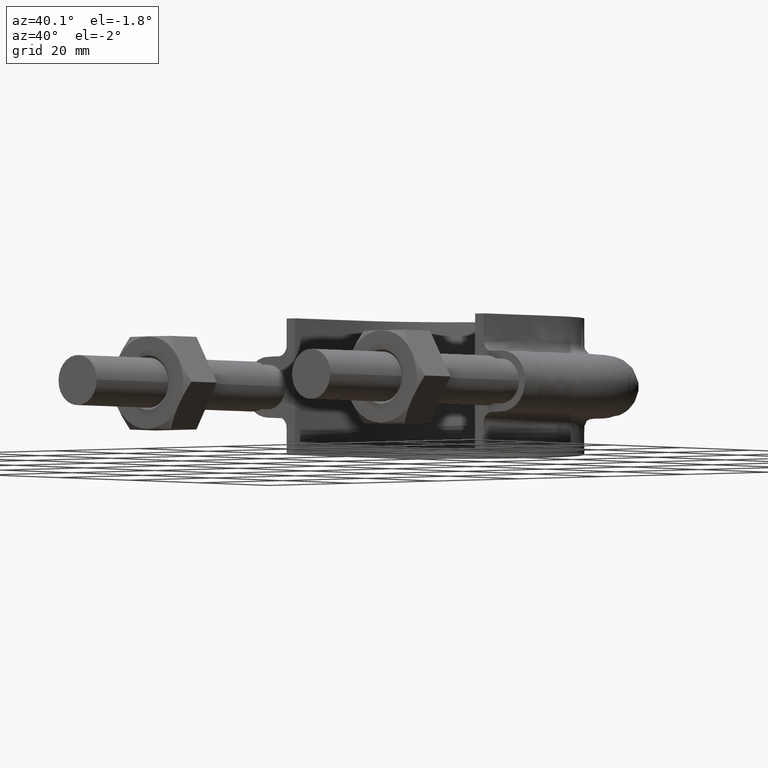
[diagram: clean part render]
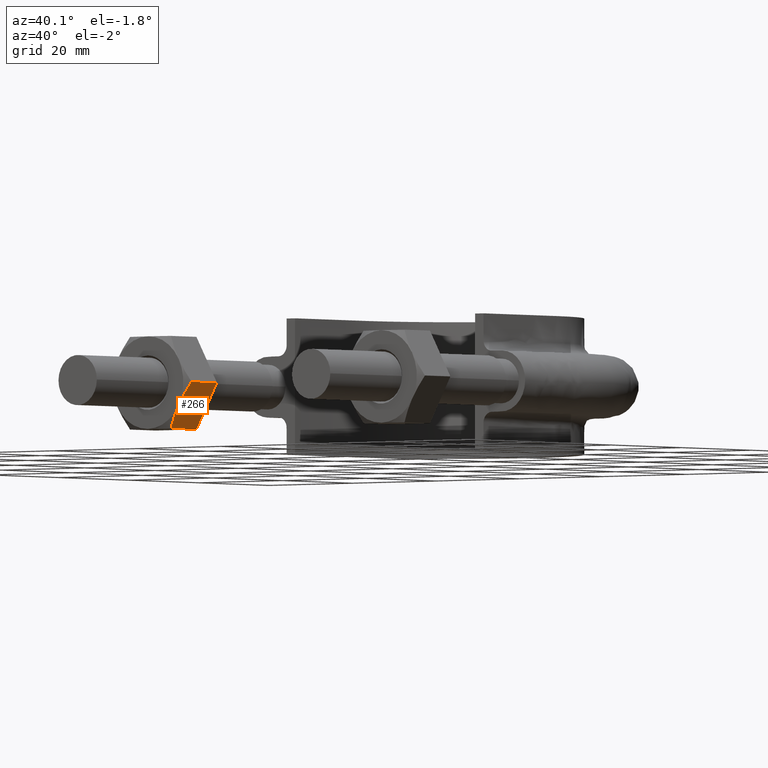
[diagram: same view with one face highlighted and labeled with its STEP entity id]
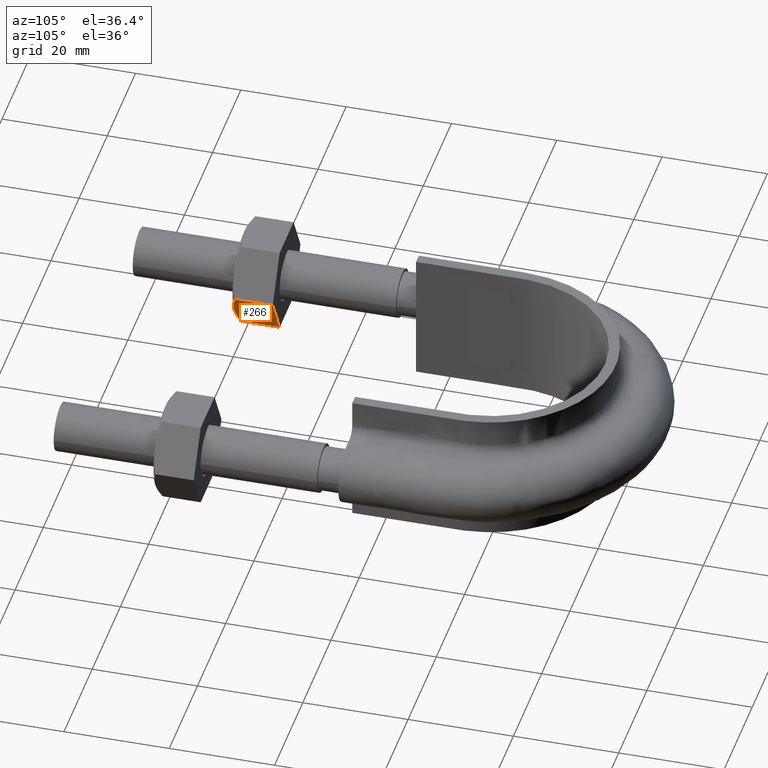
[diagram: same view with one face highlighted and labeled with its STEP entity id]
A machine part, auxiliary view. The second image highlights one B-rep face of the part: STEP entity #266.
A second angle (auxiliary view) of the same face is appended — the face is thin or edge-on in the first view.
In plain terms, the highlighted planar face has unit normal (-0.866, 0, 0.5).
Its self-contained STEP definition (entity closure, byte-faithful):
#266 = ADVANCED_FACE( '', ( #403 ), #404, .F. );
#403 = FACE_OUTER_BOUND( '', #1400, .T. );
#404 = PLANE( '', #1401 );
#1400 = EDGE_LOOP( '', ( #1785, #1786, #1787, #1788, #1789 ) );
#1401 = AXIS2_PLACEMENT_3D( '', #1790, #1791, #1792 );
#1785 = ORIENTED_EDGE( '', *, *, #2099, .F. );
#1786 = ORIENTED_EDGE( '', *, *, #2052, .F. );
#1787 = ORIENTED_EDGE( '', *, *, #2070, .F. );
#1788 = ORIENTED_EDGE( '', *, *, #2076, .F. );
#1789 = ORIENTED_EDGE( '', *, *, #2091, .F. );
#1790 = CARTESIAN_POINT( '', ( -18.1850454237764, 28.0000000000000, 1.97964474674128E-015 ) );
#1791 = DIRECTION( '', ( -0.866025403784439, 1.81492883563643E-016, 0.500000000000000 ) );
#1792 = DIRECTION( '', ( 2.09569930362941E-016, 1.00000000000000, -1.23259516440783E-032 ) );
#2052 = EDGE_CURVE( '', #2233, #2236, #2237, .T. );
#2070 = EDGE_CURVE( '', #2266, #2233, #2269, .F. );
#2076 = EDGE_CURVE( '', #2277, #2266, #2279, .T. );
#2091 = EDGE_CURVE( '', #2302, #2277, #2304, .T. );
#2099 = EDGE_CURVE( '', #2236, #2302, #2315, .T. );
#2233 = VERTEX_POINT( '', #2726 );
#2236 = VERTEX_POINT( '', #2729 );
#2237 = B_SPLINE_CURVE_WITH_KNOTS( '', 3, ( #2730, #2731, #2732, #2733, #2734, #2735 ), .UNSPECIFIED., .F., .F., ( 4, 2, 4 ), ( 6.25463444138550E-018, 0.00246745482903607, 0.00493490965807214 ), .UNSPECIFIED. );
#2266 = VERTEX_POINT( '', #2798 );
#2269 = LINE( '', #2801, #2802 );
#2277 = VERTEX_POINT( '', #2818 );
#2279 = LINE( '', #2820, #2821 );
#2302 = VERTEX_POINT( '', #2859 );
#2304 = LINE( '', #2861, #2862 );
#2315 = B_SPLINE_CURVE_WITH_KNOTS( '', 3, ( #2876, #2877, #2878, #2879, #2880, #2881 ), .UNSPECIFIED., .F., .F., ( 4, 2, 4 ), ( 1.73472347597681E-018, 0.00246745482903609, 0.00493490965807219 ), .UNSPECIFIED. );
#2726 = CARTESIAN_POINT( '', ( -23.0775337474838, 20.7505553499465, -8.47403835209865 ) );
#2729 = CARTESIAN_POINT( '', ( -20.6387840678323, 20.0000000000000, -4.25000000000000 ) );
#2730 = CARTESIAN_POINT( '', ( -23.0775337474838, 20.7505553499465, -8.47403835209864 ) );
#2731 = CARTESIAN_POINT( '', ( -22.6790699211710, 20.5215585493657, -7.78387875994654 ) );
#2732 = CARTESIAN_POINT( '', ( -22.2775056556638, 20.3328582843706, -7.08834904958399 ) );
#2733 = CARTESIAN_POINT( '', ( -21.4654371916751, 20.0716504305290, -5.68180521073131 ) );
#2734 = CARTESIAN_POINT( '', ( -21.0548670429277, 20.0000000000000, -4.97067685302958 ) );
#2735 = CARTESIAN_POINT( '', ( -20.6387840678323, 20.0000000000000, -4.24999999999999 ) );
#2798 = CARTESIAN_POINT( '', ( -23.0775337474838, 28.0000000000000, -8.47403835209865 ) );
#2801 = CARTESIAN_POINT( '', ( -23.0775337474838, 28.0000000000000, -8.47403835209865 ) );
#2802 = VECTOR( '', #3148, 1000.00000000000 );
#2818 = CARTESIAN_POINT( '', ( -18.2000343881808, 28.0000000000000, -0.0259616479013096 ) );
#2820 = CARTESIAN_POINT( '', ( -15.7387840678323, 28.0000000000000, 4.23704895708752 ) );
#2821 = VECTOR( '', #3155, 1000.00000000000 );
#2859 = CARTESIAN_POINT( '', ( -18.2000343881808, 20.7505553499465, -0.0259616479013098 ) );
#2861 = CARTESIAN_POINT( '', ( -18.2000343881808, 28.0000000000000, -0.0259616479013130 ) );
#2862 = VECTOR( '', #3182, 1000.00000000000 );
#2876 = CARTESIAN_POINT( '', ( -20.6387840678323, 20.0000000000000, -4.24999999999999 ) );
#2877 = CARTESIAN_POINT( '', ( -20.2227010927369, 20.0000000000000, -3.52932314697041 ) );
#2878 = CARTESIAN_POINT( '', ( -19.8121309439895, 20.0716504305290, -2.81819478926867 ) );
#2879 = CARTESIAN_POINT( '', ( -19.0000624800009, 20.3328582843706, -1.41165095041598 ) );
#2880 = CARTESIAN_POINT( '', ( -18.5984982144937, 20.5215585493656, -0.716121240053412 ) );
#2881 = CARTESIAN_POINT( '', ( -18.2000343881808, 20.7505553499465, -0.0259616479012986 ) );
#3148 = DIRECTION( '', ( 2.44921270764475E-016, 1.00000000000000, 6.12303176911189E-017 ) );
#3155 = DIRECTION( '', ( -0.500000000000000, 1.75487645984538E-016, -0.866025403784439 ) );
#3182 = DIRECTION( '', ( 2.44921270764475E-016, 1.00000000000000, 6.12303176911189E-017 ) );